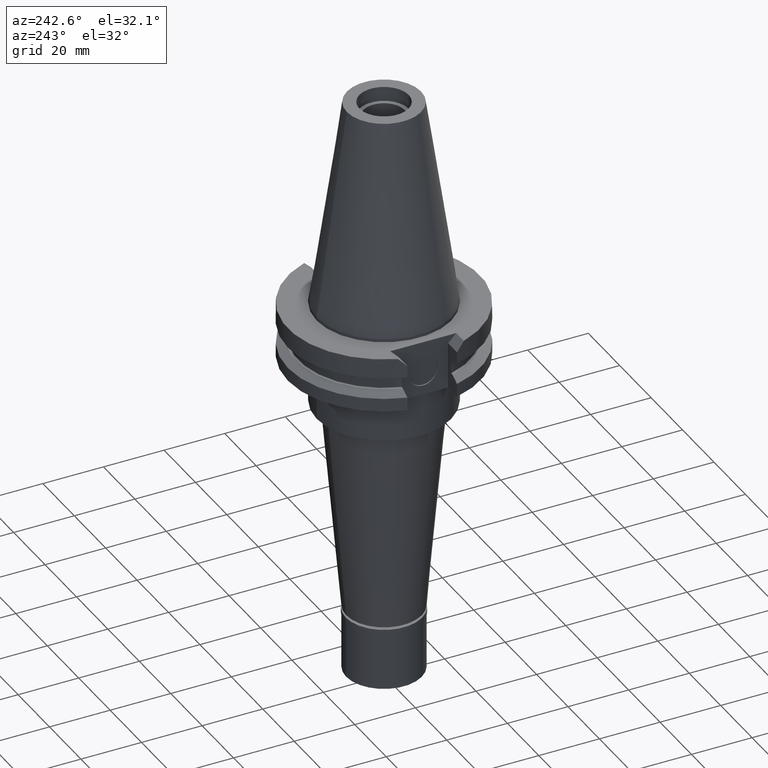
[diagram: clean part render]
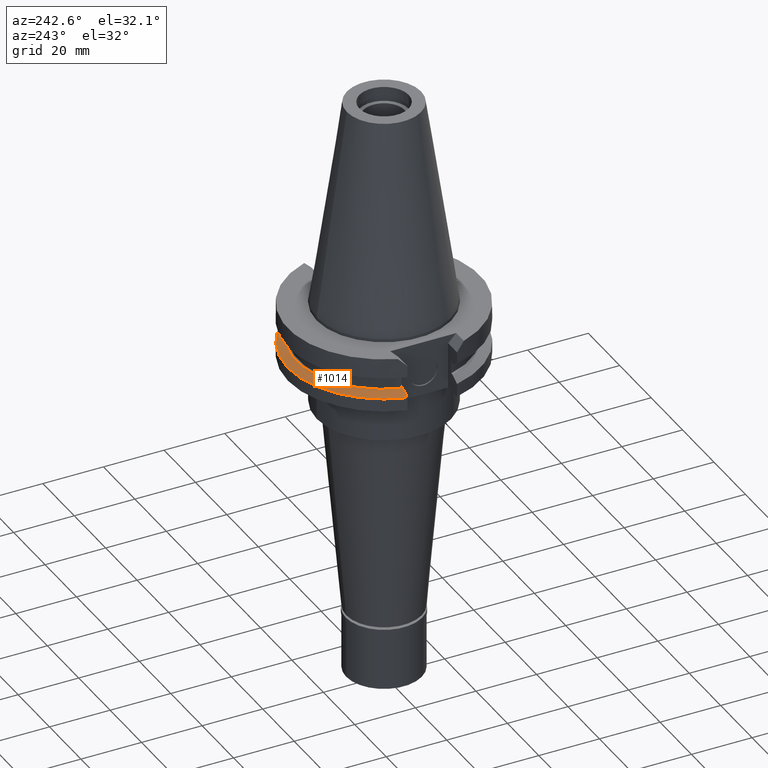
[diagram: same view with one face highlighted and labeled with its STEP entity id]
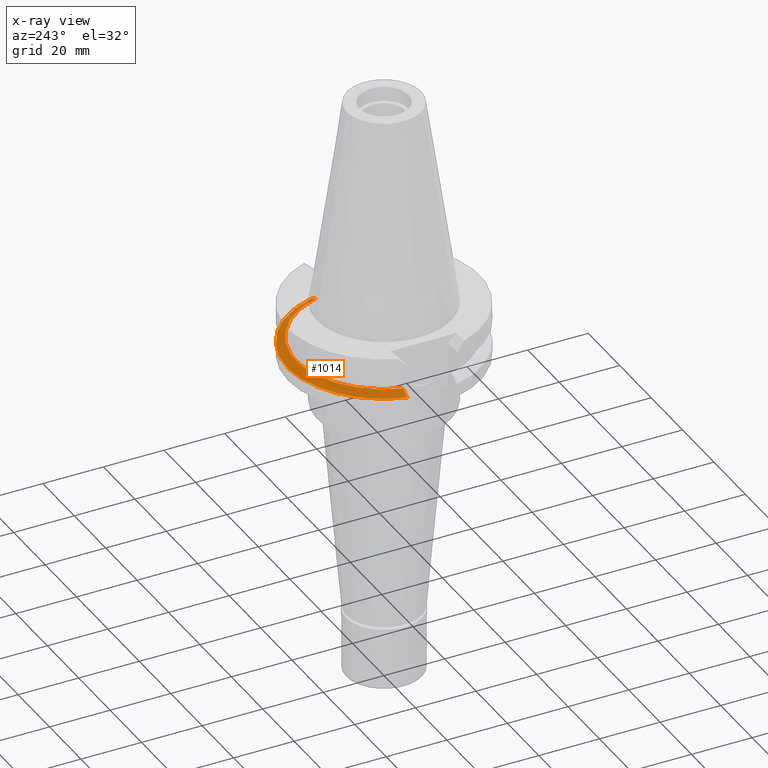
[diagram: x-ray of the same camera — body ghosted, the highlighted face saturated]
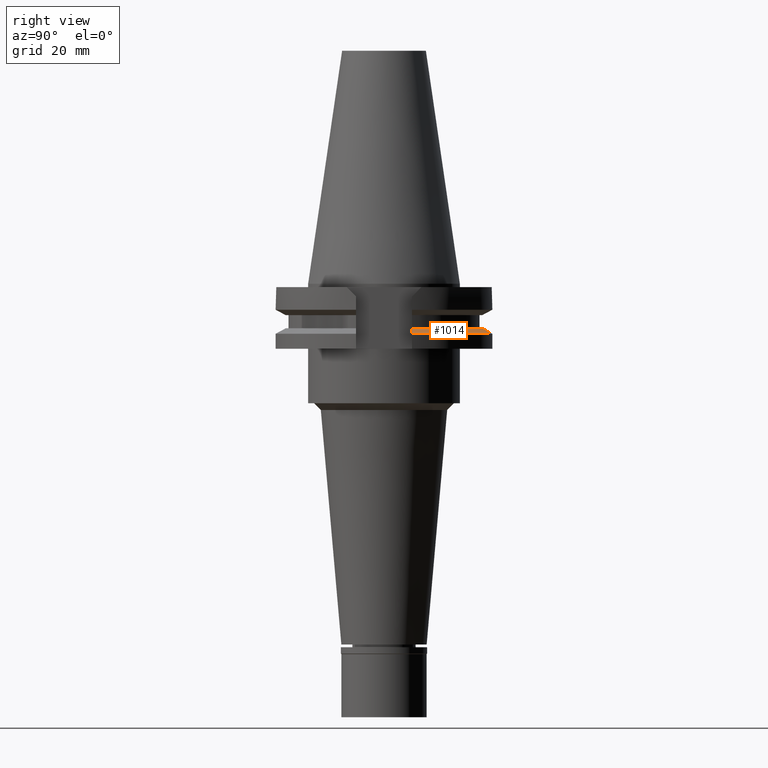
[diagram: same view with one face highlighted and labeled with its STEP entity id]
A machine part, auxiliary view. The second image highlights one B-rep face of the part: STEP entity #1014.
The next image is the same camera in x-ray: the body ghosted, the highlighted face saturated — about 8% of this face is hidden behind the body in this view.
A second angle (right view) of the same face is appended — the face is thin or edge-on in the first view.
In plain terms, the highlighted conical surface has half-angle 60 deg.
Its self-contained STEP definition (entity closure, byte-faithful):
#79 = AXIS2_PLACEMENT_3D ( 'NONE', #1998, #1450, #2255 ) ;
#178 = EDGE_CURVE ( 'NONE', #2512, #2460, #1778, .T. ) ;
#300 = ORIENTED_EDGE ( 'NONE', *, *, #1136, .F. ) ;
#477 = FACE_OUTER_BOUND ( 'NONE', #1064, .T. ) ;
#503 = AXIS2_PLACEMENT_3D ( 'NONE', #1539, #2066, #2576 ) ;
#558 = DIRECTION ( 'NONE',  ( -0.9592224574148938698, 0.2826522195046979880, 0.0000000000000000000 ) ) ;
#573 = CARTESIAN_POINT ( 'NONE',  ( -27.79398348454999734, 8.190000189194000413, -13.05000000000000071 ) ) ;
#608 = CARTESIAN_POINT ( 'NONE',  ( 28.10686072284999781, 8.189999365862998815, -13.22326684834999888 ) ) ;
#684 = VERTEX_POINT ( 'NONE', #573 ) ;
#938 = ORIENTED_EDGE ( 'NONE', *, *, #2244, .T. ) ;
#1014 = ADVANCED_FACE ( 'NONE', ( #477 ), #2900, .T. ) ;
#1055 = CIRCLE ( 'NONE', #79, 31.74999999999998579 ) ;
#1064 = EDGE_LOOP ( 'NONE', ( #1615, #1790, #300, #938 ) ) ;
#1076 = B_SPLINE_CURVE_WITH_KNOTS ( 'NONE', 3,
 ( #1126, #2154, #2870, #2610, #1573, #2648 ),
 .UNSPECIFIED., .F., .F.,
 ( 4, 1, 1, 4 ),
 ( 0.0000000000000000000, 0.3333333333333000081, 0.6666666666667000474, 1.000000000000000000 ),
 .UNSPECIFIED. ) ;
#1126 = CARTESIAN_POINT ( 'NONE',  ( -27.79398348454999734, 8.190000189194000413, -13.05000000000000071 ) ) ;
#1136 = EDGE_CURVE ( 'NONE', #684, #1911, #1076, .T. ) ;
#1341 = DIRECTION ( 'NONE',  ( 0.0000000000000000000, 0.0000000000000000000, -1.000000000000000000 ) ) ;
#1441 = CARTESIAN_POINT ( 'NONE',  ( -30.67550162588999640, 8.190000000000997815, -14.65183664206000103 ) ) ;
#1450 = DIRECTION ( 'NONE',  ( 0.0000000000000000000, 0.0000000000000000000, -1.000000000000000000 ) ) ;
#1539 = CARTESIAN_POINT ( 'NONE',  ( 0.0000000000000000000, 1.055021971275999843E-14, -13.85091832103000087 ) ) ;
#1573 = CARTESIAN_POINT ( 'NONE',  ( -30.34802279620999954, 8.190000601150000392, -14.46917071120000031 ) ) ;
#1604 = AXIS2_PLACEMENT_3D ( 'NONE', #1782, #1341, #558 ) ;
#1615 = ORIENTED_EDGE ( 'NONE', *, *, #178, .F. ) ;
#1651 = CARTESIAN_POINT ( 'NONE',  ( 27.79399588503999752, 8.189999365862998815, -13.05000000000000071 ) ) ;
#1778 = B_SPLINE_CURVE_WITH_KNOTS ( 'NONE', 3,
 ( #1906, #2942, #2928, #2144, #608, #1651 ),
 .UNSPECIFIED., .F., .F.,
 ( 4, 1, 1, 4 ),
 ( 0.0000000000000000000, 0.3333333333333000081, 0.6666666666667000474, 1.000000000000000000 ),
 .UNSPECIFIED. ) ;
#1782 = CARTESIAN_POINT ( 'NONE',  ( 0.0000000000000000000, 1.055021971275999843E-14, -13.05000000000000071 ) ) ;
#1790 = ORIENTED_EDGE ( 'NONE', *, *, #3126, .F. ) ;
#1906 = CARTESIAN_POINT ( 'NONE',  ( 30.67550165918000005, 8.189999875310000732, -14.65183552780999854 ) ) ;
#1907 = CARTESIAN_POINT ( 'NONE',  ( 27.79399588503999752, 8.189999365862998815, -13.05000000000000071 ) ) ;
#1911 = VERTEX_POINT ( 'NONE', #1441 ) ;
#1998 = CARTESIAN_POINT ( 'NONE',  ( 0.0000000000000000000, 1.055021971275999843E-14, -14.65183664206000103 ) ) ;
#2066 = DIRECTION ( 'NONE',  ( 0.0000000000000000000, 0.0000000000000000000, -1.000000000000000000 ) ) ;
#2144 = CARTESIAN_POINT ( 'NONE',  ( 28.73746674087999864, 8.190000279304998188, -13.57297645567999922 ) ) ;
#2154 = CARTESIAN_POINT ( 'NONE',  ( -28.10686060006999654, 8.190000189194000413, -13.22327364329999888 ) ) ;
#2244 = EDGE_CURVE ( 'NONE', #684, #2460, #2797, .T. ) ;
#2255 = DIRECTION ( 'NONE',  ( -0.9661575315241073270, 0.2579527559055020958, 0.0000000000000000000 ) ) ;
#2460 = VERTEX_POINT ( 'NONE', #1907 ) ;
#2512 = VERTEX_POINT ( 'NONE', #2944 ) ;
#2576 = DIRECTION ( 'NONE',  ( 0.0000000000000000000, -1.000000000000000000, 0.0000000000000000000 ) ) ;
#2610 = CARTESIAN_POINT ( 'NONE',  ( -29.69795706472000063, 8.189999744688998717, -14.10693743151000135 ) ) ;
#2648 = CARTESIAN_POINT ( 'NONE',  ( -30.67550162588999640, 8.190000000000997815, -14.65183664206000103 ) ) ;
#2797 = CIRCLE ( 'NONE', #1604, 28.97553755052999946 ) ;
#2870 = CARTESIAN_POINT ( 'NONE',  ( -28.73746172482000105, 8.189999991862999096, -13.57297085699999961 ) ) ;
#2900 = CONICAL_SURFACE ( 'NONE', #503, 30.36276877526999840, 1.047197551196400456 ) ;
#2928 = CARTESIAN_POINT ( 'NONE',  ( 29.69795856772000064, 8.189999973637000608, -14.10694090719000116 ) ) ;
#2942 = CARTESIAN_POINT ( 'NONE',  ( 30.34802881723999946, 8.189999875310000732, -14.46916747197000142 ) ) ;
#2944 = CARTESIAN_POINT ( 'NONE',  ( 30.67550165918000005, 8.189999875310000732, -14.65183552780999854 ) ) ;
#3126 = EDGE_CURVE ( 'NONE', #1911, #2512, #1055, .T. ) ;